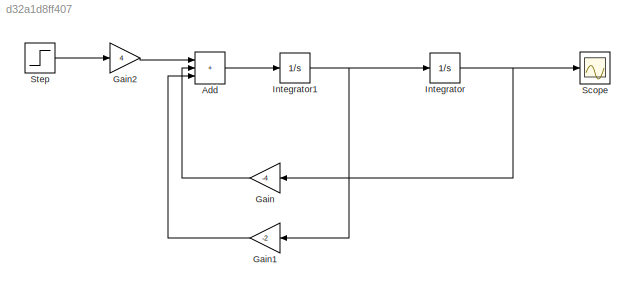
MODEL slx_d32a1d8ff407
KIND model
CONFIG AbsTol = auto
CONFIG EnableMultiTasking = off
CONFIG FixedStep = auto
CONFIG MaxStep = auto
CONFIG MinStep = auto
CONFIG RelTol = 1e-3
CONFIG SampleTimeConstraint = Unconstrained
CONFIG SolverName = VariableStepAuto
CONFIG StartTime = 0.0
CONFIG StopTime = 10.0
BLOCK [Sum] Add
  IconShape = rectangular
  Inputs = +++
  Ports = [3, 1]
BLOCK [Gain] Gain
  Gain = -4
  NameLocation = top
BLOCK [Gain] Gain1
  Gain = -2
  NameLocation = top
BLOCK [Gain] Gain2
  Gain = 4
BLOCK [Integrator] Integrator
  Ports = [1, 1]
BLOCK [Integrator] Integrator1
  Ports = [1, 1]
BLOCK [Scope] Scope
  Floating = off
  NumInputPorts = 1
  Ports = [1]
  ScopeSpecificationString = Simulink.scopes.TimeScopeBlockCfg('CurrentConfiguration', extmgr.ConfigurationSet(extmgr.Configuration('Core','General UI',true),extmgr.Configuration('Core','Source UI',true),extmgr.Configuration('Sources','WiredSimulink',true),extmgr.Configuration('Visuals','Time Domain',true,'SerializedDisplays',{struct('MinYLimReal','-0.1453','MaxYLimReal','1.30768','YLabelReal','','MinYLimMag','0.00000','MaxYL...<+1328ch>
BLOCK [Step] Step
  SampleTime = 0
  Time = 0
LINE Add:1 -> Integrator1:1
LINE Gain1:1 -> Add:3
LINE Gain2:1 -> Add:1
LINE Gain:1 -> Add:2
NET Integrator1:1 -> Gain1:1, Integrator:1
NET Integrator:1 -> Gain:1, Scope:1
LINE Step:1 -> Gain2:1
note: NET lines group one-source signal fan-out (src -> all destinations, sorted); 1:1 wires keep LINE
